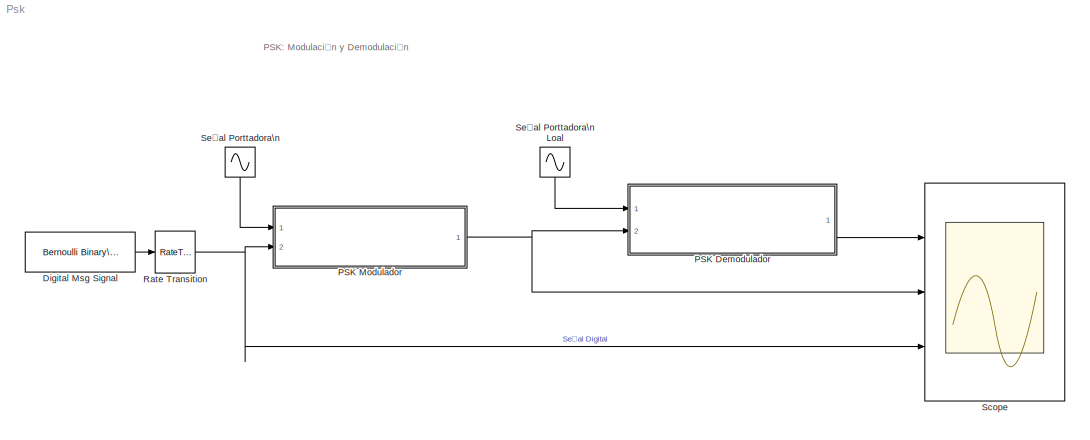
MODEL Psk
KIND model
BLOCK [Reference] Digital Msg Signal  REF=commrandsrc2/Bernoulli Binary\nGenerator
  P = 0.5
  Ports = [0, 1]
  SID = 7
  SourceBlock = commrandsrc2/Bernoulli Binary\nGenerator
  SourceType = Bernoulli Binary Generator
  Ts = 5
  frameBased = off
  orient = off
  outDataType = double
  sampPerFrame = 1
  seed = 61
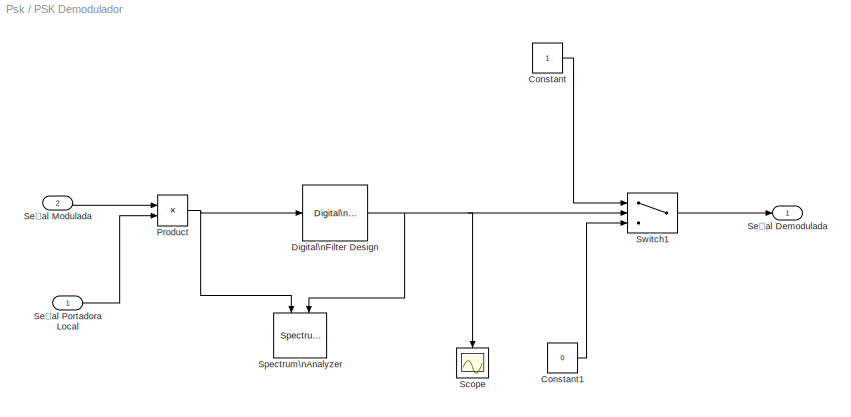
BLOCK [SubSystem] PSK Demodulador
  Ports = [2, 1]
  RequestExecContextInheritance = off
  SID = 22
  Variant = off
BLOCK [Constant] PSK Demodulador/Constant
  SID = 14
BLOCK [Constant] PSK Demodulador/Constant1
  SID = 15
  Value = 0
BLOCK [Reference] PSK Demodulador/Digital\nFilter Design  REF=dsparch4/Digital\nFilter Design
  Ports = [1, 1]
  SID = 37
  SourceBlock = dsparch4/Digital\nFilter Design
  SourceProductBaseCode = DS
  SourceProductName = DSP System Toolbox
  SourceType = Digital Filter Design
  UserData = DataTag0
  UserDataPersistent = on
  mwdsp_browser_bugfix_var = off
BLOCK [Product] PSK Demodulador/Product
  InputSameDT = off
  OutDataTypeStr = Inherit: Inherit via internal rule
  Ports = [2, 1]
  RndMeth = Floor
  SID = 10
  SaturateOnIntegerOverflow = off
BLOCK [Scope] PSK Demodulador/Scope
  NumInputPorts = 1
  Ports = [1]
  SID = 38
  ScopeSpecificationString = Simulink.scopes.TimeScopeBlockCfg('CurrentConfiguration', extmgr.ConfigurationSet(extmgr.Configuration('Core','General UI',true),extmgr.Configuration('Core','Source UI',true),extmgr.Configuration('Sources','WiredSimulink',true,'DataLoggingVariableName','ScopeData1'),extmgr.Configuration('Visuals','Time Domain',true,'SerializedDisplays',{struct('MinYLimReal','-23.25182','MaxYLimReal','23.33533','YL...<+1413ch>
BLOCK [Outport] PSK Demodulador/Señal Demodulada
  IconDisplay = Port number
  SID = 24
BLOCK [Inport] PSK Demodulador/Señal Modulada
  IconDisplay = Port number
  Port = 2
  SID = 23
BLOCK [Inport] PSK Demodulador/Señal Portadora Local
  IconDisplay = Port number
  SID = 32
BLOCK [SpectrumAnalyzer] PSK Demodulador/Spectrum\nAnalyzer
  NumInputPorts = 2
  Ports = [2]
  SID = 35
  ScopeSpecificationString = spbscopes.SpectrumAnalyzerBlockCfg('CurrentConfiguration', extmgr.ConfigurationSet(extmgr.Configuration('Core','General UI',true),extmgr.Configuration('Core','Source UI',true),extmgr.Configuration('Sources','WiredSimulink',true),extmgr.Configuration('Sources','SimulinkEvent',false),extmgr.Configuration('Sources','Simulink',false),extmgr.Configuration('Sources','File',false),extmgr.Configuration('S...<+3529ch>
BLOCK [Switch] PSK Demodulador/Switch1
  Criteria = u2 > Threshold
  InputSameDT = off
  SID = 13
  SaturateOnIntegerOverflow = off
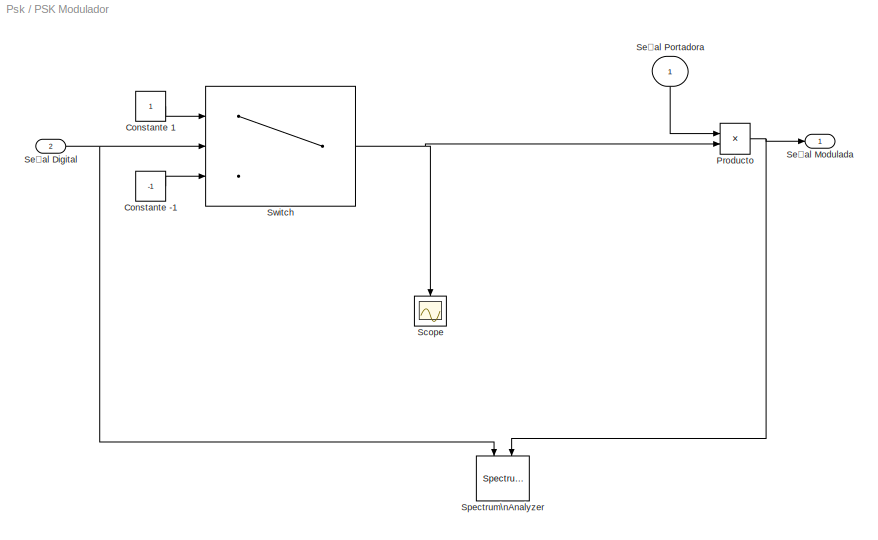
BLOCK [SubSystem] PSK Modulador
  Ports = [2, 1]
  RequestExecContextInheritance = off
  SID = 17
  Variant = off
BLOCK [Constant] PSK Modulador/Constante -1
  SID = 28
  Value = -1
BLOCK [Constant] PSK Modulador/Constante 1
  SID = 27
BLOCK [Product] PSK Modulador/Producto
  InputSameDT = off
  OutDataTypeStr = Inherit: Inherit via internal rule
  Ports = [2, 1]
  RndMeth = Floor
  SID = 29
  SaturateOnIntegerOverflow = off
BLOCK [Scope] PSK Modulador/Scope
  NumInputPorts = 1
  Ports = [1]
  SID = 39
  ScopeSpecificationString = Simulink.scopes.TimeScopeBlockCfg('CurrentConfiguration', extmgr.ConfigurationSet(extmgr.Configuration('Core','General UI',true),extmgr.Configuration('Core','Source UI',true),extmgr.Configuration('Sources','WiredSimulink',true,'DataLoggingVariableName','ScopeData2'),extmgr.Configuration('Visuals','Time Domain',true,'SerializedDisplays',{struct('MinYLimReal','-1.25','MaxYLimReal','1.25','YLabelReal...<+1374ch>
BLOCK [Inport] PSK Modulador/Señal Digital
  IconDisplay = Port number
  Port = 2
  SID = 19
BLOCK [Outport] PSK Modulador/Señal Modulada
  IconDisplay = Port number
  SID = 21
BLOCK [Inport] PSK Modulador/Señal Portadora
  IconDisplay = Port number
  SID = 18
BLOCK [SpectrumAnalyzer] PSK Modulador/Spectrum\nAnalyzer
  NumInputPorts = 2
  Ports = [2]
  SID = 33
  ScopeSpecificationString = spbscopes.SpectrumAnalyzerBlockCfg('CurrentConfiguration', extmgr.ConfigurationSet(extmgr.Configuration('Core','General UI',true),extmgr.Configuration('Core','Source UI',true),extmgr.Configuration('Sources','WiredSimulink',true),extmgr.Configuration('Sources','SimulinkEvent',false),extmgr.Configuration('Sources','Simulink',false),extmgr.Configuration('Sources','File',false),extmgr.Configuration('S...<+3530ch>
BLOCK [Switch] PSK Modulador/Switch
  Criteria = u2 > Threshold
  InputSameDT = off
  SID = 6
  SaturateOnIntegerOverflow = off
BLOCK [RateTransition] Rate Transition
  OutPortSampleTime = 1/2000
  SID = 26
BLOCK [Scope] Scope
  NumInputPorts = 3
  Ports = [3]
  SID = 16
  ScopeSpecificationString = Simulink.scopes.TimeScopeBlockCfg('CurrentConfiguration', extmgr.ConfigurationSet(extmgr.Configuration('Core','General UI',true),extmgr.Configuration('Core','Source UI',true),extmgr.Configuration('Sources','WiredSimulink',true,'DataLoggingSaveFormat','StructureWithTime','DataLoggingDecimation','1','DataLoggingDecimateData',true),extmgr.Configuration('Visuals','Time Domain',true,'SerializedDisplays...<+2913ch>
BLOCK [Sin] Señal Porttadora\n
  Amplitude = 5
  Frequency = 10*2*pi
  Ports = [0, 1]
  SID = 1
  SampleTime = 1/2000
  Samples = 50
BLOCK [Sin] Señal Porttadora\nLoal
  Amplitude = 5
  Frequency = 10*2*pi
  Ports = [0, 1]
  SID = 31
  SampleTime = 1/2000
  Samples = 50
ANNOTATION (root): PSK: Modulación y Demodulación
LINE Digital Msg Signal:1 -> Rate Transition:1
LINE PSK Demodulador/Constant1:1 -> PSK Demodulador/Switch1:3
LINE PSK Demodulador/Constant:1 -> PSK Demodulador/Switch1:1
NET PSK Demodulador/Digital\nFilter Design:1 -> PSK Demodulador/Scope:1, PSK Demodulador/Spectrum\nAnalyzer:2, PSK Demodulador/Switch1:2
NET PSK Demodulador/Product:1 -> PSK Demodulador/Digital\nFilter Design:1, PSK Demodulador/Spectrum\nAnalyzer:1
LINE PSK Demodulador/Señal Modulada:1 -> PSK Demodulador/Product:1
LINE PSK Demodulador/Señal Portadora Local:1 -> PSK Demodulador/Product:2
LINE PSK Demodulador/Switch1:1 -> PSK Demodulador/Señal Demodulada:1
LINE PSK Demodulador:1 -> Scope:1
LINE PSK Modulador/Constante -1:1 -> PSK Modulador/Switch:3
LINE PSK Modulador/Constante 1:1 -> PSK Modulador/Switch:1
NET PSK Modulador/Producto:1 -> PSK Modulador/Señal Modulada:1, PSK Modulador/Spectrum\nAnalyzer:2
NET PSK Modulador/Señal Digital:1 -> PSK Modulador/Spectrum\nAnalyzer:1, PSK Modulador/Switch:2
LINE PSK Modulador/Señal Portadora:1 -> PSK Modulador/Producto:1
NET PSK Modulador/Switch:1 -> PSK Modulador/Producto:2, PSK Modulador/Scope:1
NET PSK Modulador:1 -> PSK Demodulador:2, Scope:2
NET Rate Transition:1 -> PSK Modulador:2, Scope:3
LINE Señal Porttadora\n:1 -> PSK Modulador:1
LINE Señal Porttadora\nLoal:1 -> PSK Demodulador:1
note: NET lines group one-source signal fan-out (src -> all destinations, sorted); 1:1 wires keep LINE
